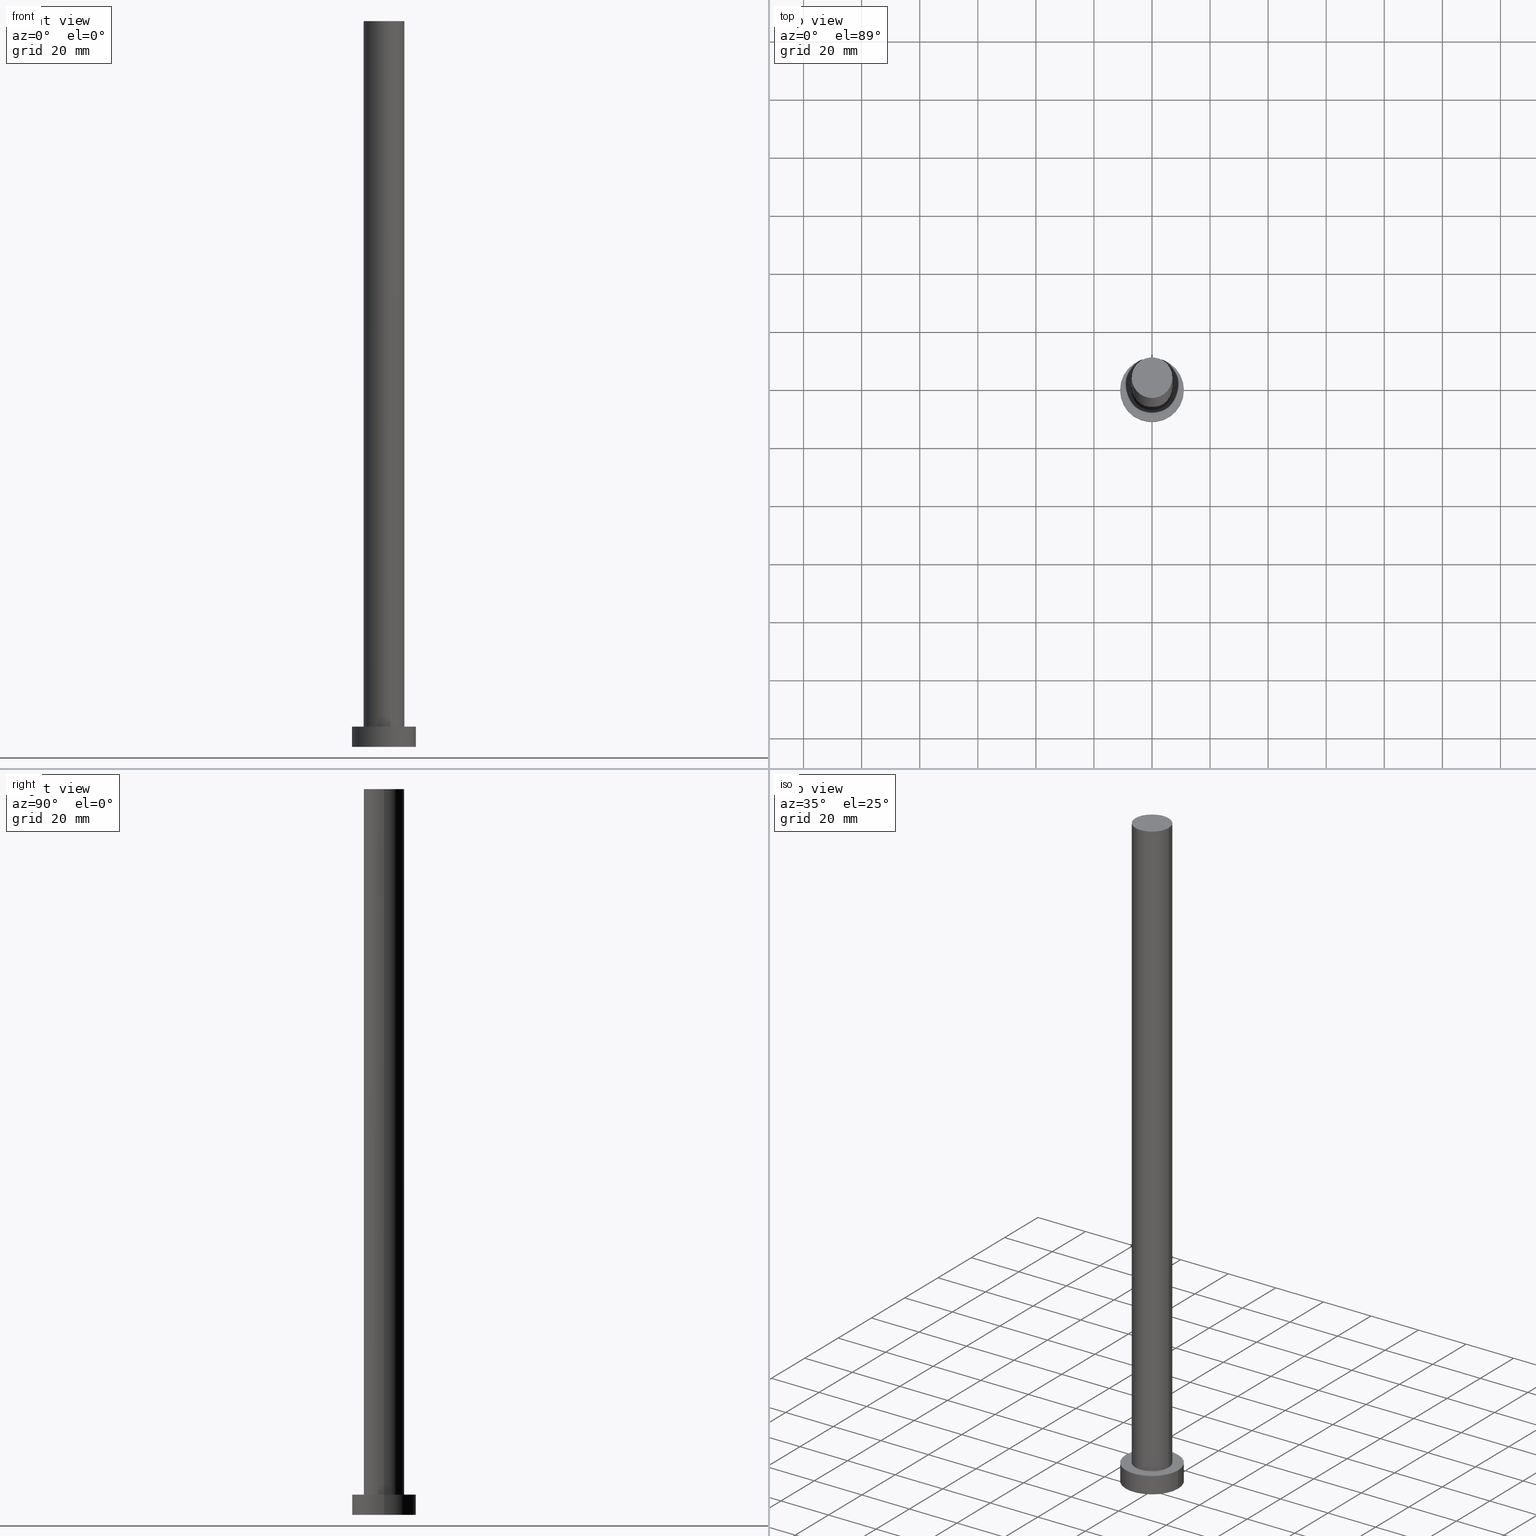
[diagram: canonical four-view strip — front | top / right | iso, engineering-drawing reading convention]
A machine part, canonical four-view strip (front | top / right | iso — engineering-drawing reading convention). The complete STEP part file that produces these views, byte-faithful:
ISO-10303-21;
HEADER;
FILE_DESCRIPTION (( 'STEP AP203' ),
    '1' );
FILE_NAME ('4349.STEP',
    '2023-02-12T10:47:33',
    ( '' ),
    ( '' ),
    'SwSTEP 2.0',
    'SolidWorks 2019',
    '' );
FILE_SCHEMA (( 'CONFIG_CONTROL_DESIGN' ));
ENDSEC;

DATA;
#1 = DIRECTION ( 'NONE',  ( 1.000000000000000000, 0.000000000000000000, 0.000000000000000000 ) ) ;
#2 = APPLICATION_PROTOCOL_DEFINITION ( 'international standard', 'config_control_design', 1994, #60 ) ;
#3 = CIRCLE ( 'NONE', #72, 7.000000000000000000 ) ;
#4 = LINE ( 'NONE', #68, #148 ) ;
#5 = DIRECTION ( 'NONE',  ( 1.000000000000000000, 0.000000000000000000, -0.000000000000000000 ) ) ;
#6 = DIRECTION ( 'NONE',  ( -0.000000000000000000, -0.000000000000000000, -1.000000000000000000 ) ) ;
#7 = PRODUCT_RELATED_PRODUCT_CATEGORY ( 'detail', '', ( #209 ) ) ;
#8 = CARTESIAN_POINT ( 'NONE',  ( -7.000000000000000000, 0.000000000000000000, 7.000000000000000000 ) ) ;
#9 = CARTESIAN_POINT ( 'NONE',  ( 0.000000000000000000, 0.000000000000000000, 7.000000000000000000 ) ) ;
#10 = DIRECTION ( 'NONE',  ( 0.000000000000000000, 0.000000000000000000, 1.000000000000000000 ) ) ;
#11 = ORIENTED_EDGE ( 'NONE', *, *, #135, .T. ) ;
#12 = EDGE_LOOP ( 'NONE', ( #222, #141 ) ) ;
#13 = CARTESIAN_POINT ( 'NONE',  ( -11.00000000000000000, 0.000000000000000000, 0.000000000000000000 ) ) ;
#14 = APPROVAL ( #33, 'NEUR�EN�' ) ;
#15 = DIRECTION ( 'NONE',  ( -0.000000000000000000, -0.000000000000000000, -1.000000000000000000 ) ) ;
#16 = PLANE ( 'NONE',  #56 ) ;
#17 = APPROVAL ( #38, 'NEUR�EN�' ) ;
#18 = AXIS2_PLACEMENT_3D ( 'NONE', #167, #87, #1 ) ;
#19 = ORGANIZATION ( 'NEUR�EN�', 'NEUR�EN�', '' ) ;
#20 = DIRECTION ( 'NONE',  ( -0.000000000000000000, -0.000000000000000000, -1.000000000000000000 ) ) ;
#21 = APPROVAL_DATE_TIME ( #196, #73 ) ;
#22 = APPROVAL_PERSON_ORGANIZATION ( #98, #17, #134 ) ;
#23 = DIRECTION ( 'NONE',  ( -0.000000000000000000, -0.000000000000000000, -1.000000000000000000 ) ) ;
#24 = ORIENTED_EDGE ( 'NONE', *, *, #27, .F. ) ;
#25 = CARTESIAN_POINT ( 'NONE',  ( 0.000000000000000000, 0.000000000000000000, 7.000000000000000000 ) ) ;
#26 = LOCAL_TIME ( 11, 47, 33.00000000000000000, #88 ) ;
#27 = EDGE_CURVE ( 'NONE', #142, #210, #53, .T. ) ;
#28 = CARTESIAN_POINT ( 'NONE',  ( -11.00000000000000000, 0.000000000000000000, 7.000000000000000000 ) ) ;
#29 = VERTEX_POINT ( 'NONE', #13 ) ;
#30 = ORIENTED_EDGE ( 'NONE', *, *, #135, .F. ) ;
#31 = AXIS2_PLACEMENT_3D ( 'NONE', #9, #160, #143 ) ;
#32 = APPROVAL_DATE_TIME ( #227, #14 ) ;
#33 = APPROVAL_STATUS ( 'not_yet_approved' ) ;
#34 = PERSON_AND_ORGANIZATION_ROLE ( 'design_supplier' ) ;
#35 = MECHANICAL_CONTEXT ( 'NONE', #60, 'mechanical' ) ;
#36 = CALENDAR_DATE ( 2023, 12, 2 ) ;
#37 = LINE ( 'NONE', #172, #193 ) ;
#38 = APPROVAL_STATUS ( 'not_yet_approved' ) ;
#39 = LOCAL_TIME ( 11, 47, 33.00000000000000000, #190 ) ;
#40 = DIRECTION ( 'NONE',  ( 0.000000000000000000, 0.000000000000000000, 1.000000000000000000 ) ) ;
#41 = EDGE_CURVE ( 'NONE', #42, #210, #229, .T. ) ;
#42 = VERTEX_POINT ( 'NONE', #163 ) ;
#43 = VERTEX_POINT ( 'NONE', #62 ) ;
#44 = CALENDAR_DATE ( 2023, 12, 2 ) ;
#45 = ORIENTED_EDGE ( 'NONE', *, *, #108, .T. ) ;
#46 = ORIENTED_EDGE ( 'NONE', *, *, #27, .T. ) ;
#47 = DIRECTION ( 'NONE',  ( -0.000000000000000000, -0.000000000000000000, -1.000000000000000000 ) ) ;
#48 =( NAMED_UNIT ( * ) SI_UNIT ( $, .STERADIAN. ) SOLID_ANGLE_UNIT ( ) );
#49 = SHAPE_DEFINITION_REPRESENTATION ( #81, #107 ) ;
#50 = CARTESIAN_POINT ( 'NONE',  ( 0.000000000000000000, 0.000000000000000000, 250.0000000000000000 ) ) ;
#51 = PERSON_AND_ORGANIZATION_ROLE ( 'creator' ) ;
#52 = CC_DESIGN_PERSON_AND_ORGANIZATION_ASSIGNMENT ( #64, #34, ( #127 ) ) ;
#53 = CIRCLE ( 'NONE', #234, 7.000000000000000000 ) ;
#54 = CC_DESIGN_APPROVAL ( #17, ( #127 ) ) ;
#55 = CARTESIAN_POINT ( 'NONE',  ( 0.000000000000000000, 0.000000000000000000, 7.000000000000000000 ) ) ;
#56 = AXIS2_PLACEMENT_3D ( 'NONE', #213, #243, #97 ) ;
#57 = DIRECTION ( 'NONE',  ( 0.000000000000000000, 0.000000000000000000, 1.000000000000000000 ) ) ;
#58 =( GEOMETRIC_REPRESENTATION_CONTEXT ( 3 ) GLOBAL_UNCERTAINTY_ASSIGNED_CONTEXT ( ( #170 ) ) GLOBAL_UNIT_ASSIGNED_CONTEXT ( ( #201, #253, #48 ) ) REPRESENTATION_CONTEXT ( 'NONE', 'WORKASPACE' ) );
#59 = COORDINATED_UNIVERSAL_TIME_OFFSET ( 1, 0, .AHEAD. ) ;
#60 = APPLICATION_CONTEXT ( 'configuration controlled 3d designs of mechanical parts and assemblies' ) ;
#61 = VERTEX_POINT ( 'NONE', #250 ) ;
#62 = CARTESIAN_POINT ( 'NONE',  ( 7.000000000000000000, 8.572527594031473190E-16, 250.0000000000000000 ) ) ;
#63 = CARTESIAN_POINT ( 'NONE',  ( 0.000000000000000000, 0.000000000000000000, 7.000000000000000000 ) ) ;
#64 = PERSON_AND_ORGANIZATION ( #133, #19 ) ;
#65 = DIRECTION ( 'NONE',  ( 0.000000000000000000, 0.000000000000000000, 1.000000000000000000 ) ) ;
#66 = DIRECTION ( 'NONE',  ( 1.000000000000000000, 0.000000000000000000, 0.000000000000000000 ) ) ;
#67 = CC_DESIGN_APPROVAL ( #14, ( #208 ) ) ;
#68 = CARTESIAN_POINT ( 'NONE',  ( 11.00000000000000000, 1.347111479062088405E-15, 7.000000000000000000 ) ) ;
#69 = FACE_OUTER_BOUND ( 'NONE', #185, .T. ) ;
#70 = ORIENTED_EDGE ( 'NONE', *, *, #92, .T. ) ;
#71 = AXIS2_PLACEMENT_3D ( 'NONE', #94, #240, #175 ) ;
#72 = AXIS2_PLACEMENT_3D ( 'NONE', #85, #189, #119 ) ;
#73 = APPROVAL ( #194, 'NEUR�EN�' ) ;
#74 = EDGE_CURVE ( 'NONE', #210, #142, #96, .T. ) ;
#75 = CARTESIAN_POINT ( 'NONE',  ( 0.000000000000000000, 0.000000000000000000, 0.000000000000000000 ) ) ;
#76 = ORIENTED_EDGE ( 'NONE', *, *, #108, .F. ) ;
#77 = FACE_BOUND ( 'NONE', #244, .T. ) ;
#78 = ORIENTED_EDGE ( 'NONE', *, *, #41, .T. ) ;
#79 = ORIENTED_EDGE ( 'NONE', *, *, #153, .F. ) ;
#80 = CARTESIAN_POINT ( 'NONE',  ( -7.000000000000000000, 0.000000000000000000, 250.0000000000000000 ) ) ;
#81 = PRODUCT_DEFINITION_SHAPE ( 'NONE', 'NONE',  #220 ) ;
#82 = EDGE_LOOP ( 'NONE', ( #124, #11, #164, #76 ) ) ;
#83 = FACE_OUTER_BOUND ( 'NONE', #12, .T. ) ;
#84 = AXIS2_PLACEMENT_3D ( 'NONE', #93, #130, #5 ) ;
#85 = CARTESIAN_POINT ( 'NONE',  ( 0.000000000000000000, 0.000000000000000000, 250.0000000000000000 ) ) ;
#86 = DIRECTION ( 'NONE',  ( -0.000000000000000000, -0.000000000000000000, -1.000000000000000000 ) ) ;
#87 = DIRECTION ( 'NONE',  ( 0.000000000000000000, 0.000000000000000000, 1.000000000000000000 ) ) ;
#88 = COORDINATED_UNIVERSAL_TIME_OFFSET ( 1, 0, .AHEAD. ) ;
#89 = PERSON_AND_ORGANIZATION ( #133, #19 ) ;
#90 = CARTESIAN_POINT ( 'NONE',  ( 0.000000000000000000, 0.000000000000000000, 0.000000000000000000 ) ) ;
#91 = APPLICATION_PROTOCOL_DEFINITION ( 'international standard', 'config_control_design', 1994, #177 ) ;
#92 = EDGE_CURVE ( 'NONE', #61, #205, #140, .T. ) ;
#93 = CARTESIAN_POINT ( 'NONE',  ( 0.000000000000000000, 0.000000000000000000, 250.0000000000000000 ) ) ;
#94 = CARTESIAN_POINT ( 'NONE',  ( 0.000000000000000000, 0.000000000000000000, 250.0000000000000000 ) ) ;
#95 = CC_DESIGN_PERSON_AND_ORGANIZATION_ASSIGNMENT ( #230, #144, ( #208 ) ) ;
#96 = CIRCLE ( 'NONE', #31, 7.000000000000000000 ) ;
#97 = DIRECTION ( 'NONE',  ( 1.000000000000000000, 0.000000000000000000, -0.000000000000000000 ) ) ;
#98 = PERSON_AND_ORGANIZATION ( #133, #19 ) ;
#99 = ORIENTED_EDGE ( 'NONE', *, *, #153, .T. ) ;
#100 = EDGE_CURVE ( 'NONE', #182, #29, #102, .T. ) ;
#101 = LOCAL_TIME ( 11, 47, 33.00000000000000000, #105 ) ;
#102 = CIRCLE ( 'NONE', #242, 11.00000000000000000 ) ;
#103 = ORIENTED_EDGE ( 'NONE', *, *, #41, .F. ) ;
#104 = ORIENTED_EDGE ( 'NONE', *, *, #186, .T. ) ;
#105 = COORDINATED_UNIVERSAL_TIME_OFFSET ( 1, 0, .AHEAD. ) ;
#106 = DATE_AND_TIME ( #122, #101 ) ;
#107 = ADVANCED_BREP_SHAPE_REPRESENTATION ( '4349', ( #176, #252 ), #58 ) ;
#108 = EDGE_CURVE ( 'NONE', #205, #29, #109, .T. ) ;
#109 = LINE ( 'NONE', #232, #157 ) ;
#110 = PERSON_AND_ORGANIZATION_ROLE ( 'design_owner' ) ;
#111 = DIRECTION ( 'NONE',  ( 1.000000000000000000, 0.000000000000000000, 0.000000000000000000 ) ) ;
#112 = DIRECTION ( 'NONE',  ( -1.000000000000000000, 0.000000000000000000, 0.000000000000000000 ) ) ;
#113 = PLANE ( 'NONE',  #84 ) ;
#114 = CIRCLE ( 'NONE', #18, 7.000000000000000000 ) ;
#115 = AXIS2_PLACEMENT_3D ( 'NONE', #50, #86, #165 ) ;
#116 = EDGE_CURVE ( 'NONE', #42, #43, #114, .T. ) ;
#117 = AXIS2_PLACEMENT_3D ( 'NONE', #75, #57, #221 ) ;
#118 = COORDINATED_UNIVERSAL_TIME_OFFSET ( 1, 0, .AHEAD. ) ;
#119 = DIRECTION ( 'NONE',  ( 1.000000000000000000, 0.000000000000000000, 0.000000000000000000 ) ) ;
#120 = ORIENTED_EDGE ( 'NONE', *, *, #217, .T. ) ;
#121 = PERSON_AND_ORGANIZATION_ROLE ( 'creator' ) ;
#122 = CALENDAR_DATE ( 2023, 12, 2 ) ;
#123 = AXIS2_PLACEMENT_3D ( 'NONE', #219, #40, #166 ) ;
#124 = ORIENTED_EDGE ( 'NONE', *, *, #92, .F. ) ;
#125 = DIRECTION ( 'NONE',  ( 1.000000000000000000, 0.000000000000000000, 0.000000000000000000 ) ) ;
#126 = DIRECTION ( 'NONE',  ( 0.000000000000000000, 0.000000000000000000, 1.000000000000000000 ) ) ;
#127 = PRODUCT_DEFINITION_FORMATION_WITH_SPECIFIED_SOURCE ( 'LIBOVOLN�', '', #209, .NOT_KNOWN. ) ;
#128 = ADVANCED_FACE ( 'NONE', ( #191 ), #200, .T. ) ;
#129 = PERSON_AND_ORGANIZATION ( #133, #19 ) ;
#130 = DIRECTION ( 'NONE',  ( 0.000000000000000000, 0.000000000000000000, 1.000000000000000000 ) ) ;
#131 = DESIGN_CONTEXT ( 'detailed design', #177, 'design' ) ;
#132 = LOCAL_TIME ( 11, 47, 33.00000000000000000, #118 ) ;
#133 = PERSON ( 'NEUR�EN�', 'NEUR�EN�', 'NEUR�EN�', ('NEUR�EN�'), ('NEUR�EN�'), ('NEUR�EN�') ) ;
#134 = APPROVAL_ROLE ( '' ) ;
#135 = EDGE_CURVE ( 'NONE', #61, #182, #4, .T. ) ;
#136 = CARTESIAN_POINT ( 'NONE',  ( 11.00000000000000000, 1.347111479062088405E-15, 0.000000000000000000 ) ) ;
#137 = CALENDAR_DATE ( 2023, 12, 2 ) ;
#138 = DATE_AND_TIME ( #137, #26 ) ;
#139 = EDGE_LOOP ( 'NONE', ( #79, #226, #78, #249 ) ) ;
#140 = CIRCLE ( 'NONE', #173, 11.00000000000000000 ) ;
#141 = ORIENTED_EDGE ( 'NONE', *, *, #100, .F. ) ;
#142 = VERTEX_POINT ( 'NONE', #156 ) ;
#143 = DIRECTION ( 'NONE',  ( 1.000000000000000000, 0.000000000000000000, 0.000000000000000000 ) ) ;
#144 = PERSON_AND_ORGANIZATION_ROLE ( 'classification_officer' ) ;
#145 = DIRECTION ( 'NONE',  ( 1.000000000000000000, 0.000000000000000000, 0.000000000000000000 ) ) ;
#146 = SECURITY_CLASSIFICATION_LEVEL ( 'unclassified' ) ;
#147 = FACE_OUTER_BOUND ( 'NONE', #139, .T. ) ;
#148 = VECTOR ( 'NONE', #6, 1000.000000000000000 ) ;
#149 = ADVANCED_FACE ( 'NONE', ( #152 ), #239, .T. ) ;
#150 = CC_DESIGN_DATE_AND_TIME_ASSIGNMENT ( #138, #203, ( #220 ) ) ;
#151 = CLOSED_SHELL ( 'NONE', ( #149, #155, #128, #254, #255, #215, #169 ) ) ;
#152 = FACE_OUTER_BOUND ( 'NONE', #206, .T. ) ;
#153 = EDGE_CURVE ( 'NONE', #43, #142, #37, .T. ) ;
#154 = DATE_AND_TIME ( #199, #132 ) ;
#155 = ADVANCED_FACE ( 'NONE', ( #238 ), #159, .T. ) ;
#156 = CARTESIAN_POINT ( 'NONE',  ( 7.000000000000000000, 8.572527594031473190E-16, 7.000000000000000000 ) ) ;
#157 = VECTOR ( 'NONE', #15, 1000.000000000000000 ) ;
#158 = LOCAL_TIME ( 11, 47, 33.00000000000000000, #59 ) ;
#159 = CYLINDRICAL_SURFACE ( 'NONE', #237, 11.00000000000000000 ) ;
#160 = DIRECTION ( 'NONE',  ( 0.000000000000000000, 0.000000000000000000, 1.000000000000000000 ) ) ;
#161 = ORIENTED_EDGE ( 'NONE', *, *, #187, .F. ) ;
#162 = PERSON_AND_ORGANIZATION ( #133, #19 ) ;
#163 = CARTESIAN_POINT ( 'NONE',  ( -7.000000000000000000, 0.000000000000000000, 250.0000000000000000 ) ) ;
#164 = ORIENTED_EDGE ( 'NONE', *, *, #100, .T. ) ;
#165 = DIRECTION ( 'NONE',  ( -1.000000000000000000, 0.000000000000000000, 0.000000000000000000 ) ) ;
#166 = DIRECTION ( 'NONE',  ( 1.000000000000000000, 0.000000000000000000, 0.000000000000000000 ) ) ;
#167 = CARTESIAN_POINT ( 'NONE',  ( 0.000000000000000000, 0.000000000000000000, 250.0000000000000000 ) ) ;
#168 = PERSON_AND_ORGANIZATION ( #133, #19 ) ;
#169 = ADVANCED_FACE ( 'NONE', ( #69 ), #113, .T. ) ;
#170 = UNCERTAINTY_MEASURE_WITH_UNIT (LENGTH_MEASURE( 1.000000000000000082E-05 ), #201, 'distance_accuracy_value', 'NONE');
#171 = CC_DESIGN_PERSON_AND_ORGANIZATION_ASSIGNMENT ( #162, #121, ( #127 ) ) ;
#172 = CARTESIAN_POINT ( 'NONE',  ( 7.000000000000000000, 8.572527594031473190E-16, 250.0000000000000000 ) ) ;
#173 = AXIS2_PLACEMENT_3D ( 'NONE', #188, #231, #111 ) ;
#174 = AXIS2_PLACEMENT_3D ( 'NONE', #180, #10, #125 ) ;
#175 = DIRECTION ( 'NONE',  ( -1.000000000000000000, 0.000000000000000000, 0.000000000000000000 ) ) ;
#176 = MANIFOLD_SOLID_BREP ( 'P�idat vysunut�m3', #151 ) ;
#177 = APPLICATION_CONTEXT ( 'configuration controlled 3d designs of mechanical parts and assemblies' ) ;
#178 = APPROVAL_PERSON_ORGANIZATION ( #89, #73, #233 ) ;
#179 = EDGE_LOOP ( 'NONE', ( #30, #246, #45, #104 ) ) ;
#180 = CARTESIAN_POINT ( 'NONE',  ( 0.000000000000000000, 0.000000000000000000, 7.000000000000000000 ) ) ;
#181 = PLANE ( 'NONE',  #117 ) ;
#182 = VERTEX_POINT ( 'NONE', #136 ) ;
#183 = AXIS2_PLACEMENT_3D ( 'NONE', #25, #20, #112 ) ;
#184 = DIRECTION ( 'NONE',  ( 0.000000000000000000, 0.000000000000000000, 1.000000000000000000 ) ) ;
#185 = EDGE_LOOP ( 'NONE', ( #225, #204 ) ) ;
#186 = EDGE_CURVE ( 'NONE', #29, #182, #247, .T. ) ;
#187 = EDGE_CURVE ( 'NONE', #43, #42, #3, .T. ) ;
#188 = CARTESIAN_POINT ( 'NONE',  ( 0.000000000000000000, 0.000000000000000000, 7.000000000000000000 ) ) ;
#189 = DIRECTION ( 'NONE',  ( 0.000000000000000000, 0.000000000000000000, 1.000000000000000000 ) ) ;
#190 = COORDINATED_UNIVERSAL_TIME_OFFSET ( 1, 0, .AHEAD. ) ;
#191 = FACE_OUTER_BOUND ( 'NONE', #179, .T. ) ;
#192 = DIRECTION ( 'NONE',  ( 1.000000000000000000, 0.000000000000000000, 0.000000000000000000 ) ) ;
#193 = VECTOR ( 'NONE', #23, 1000.000000000000000 ) ;
#194 = APPROVAL_STATUS ( 'not_yet_approved' ) ;
#195 = CARTESIAN_POINT ( 'NONE',  ( 0.000000000000000000, 0.000000000000000000, 0.000000000000000000 ) ) ;
#196 = DATE_AND_TIME ( #36, #39 ) ;
#197 = CC_DESIGN_DATE_AND_TIME_ASSIGNMENT ( #106, #207, ( #208 ) ) ;
#198 = DIRECTION ( 'NONE',  ( -0.000000000000000000, -0.000000000000000000, -1.000000000000000000 ) ) ;
#199 = CALENDAR_DATE ( 2023, 12, 2 ) ;
#200 = CYLINDRICAL_SURFACE ( 'NONE', #183, 11.00000000000000000 ) ;
#201 =( LENGTH_UNIT ( ) NAMED_UNIT ( * ) SI_UNIT ( .MILLI., .METRE. ) );
#202 = CC_DESIGN_PERSON_AND_ORGANIZATION_ASSIGNMENT ( #129, #110, ( #209 ) ) ;
#203 = DATE_TIME_ROLE ( 'creation_date' ) ;
#204 = ORIENTED_EDGE ( 'NONE', *, *, #187, .T. ) ;
#205 = VERTEX_POINT ( 'NONE', #28 ) ;
#206 = EDGE_LOOP ( 'NONE', ( #161, #99, #46, #103 ) ) ;
#207 = DATE_TIME_ROLE ( 'classification_date' ) ;
#208 = SECURITY_CLASSIFICATION ( '', '', #146 ) ;
#209 = PRODUCT ( '4349', '4349', '', ( #35 ) ) ;
#210 = VERTEX_POINT ( 'NONE', #8 ) ;
#211 = PERSON_AND_ORGANIZATION ( #133, #19 ) ;
#212 = CYLINDRICAL_SURFACE ( 'NONE', #115, 7.000000000000000000 ) ;
#213 = CARTESIAN_POINT ( 'NONE',  ( 0.000000000000000000, 0.000000000000000000, 7.000000000000000000 ) ) ;
#214 = APPROVAL_PERSON_ORGANIZATION ( #211, #14, #248 ) ;
#215 = ADVANCED_FACE ( 'NONE', ( #147 ), #212, .T. ) ;
#216 = VECTOR ( 'NONE', #47, 1000.000000000000000 ) ;
#217 = EDGE_CURVE ( 'NONE', #205, #61, #235, .T. ) ;
#218 = DIRECTION ( 'NONE',  ( -1.000000000000000000, 0.000000000000000000, 0.000000000000000000 ) ) ;
#219 = CARTESIAN_POINT ( 'NONE',  ( 0.000000000000000000, 0.000000000000000000, 0.000000000000000000 ) ) ;
#220 = PRODUCT_DEFINITION ( 'NEZN�M�', '', #127, #131 ) ;
#221 = DIRECTION ( 'NONE',  ( 1.000000000000000000, 0.000000000000000000, -0.000000000000000000 ) ) ;
#222 = ORIENTED_EDGE ( 'NONE', *, *, #186, .F. ) ;
#223 = EDGE_LOOP ( 'NONE', ( #120, #70 ) ) ;
#224 = APPROVAL_DATE_TIME ( #154, #17 ) ;
#225 = ORIENTED_EDGE ( 'NONE', *, *, #116, .T. ) ;
#226 = ORIENTED_EDGE ( 'NONE', *, *, #116, .F. ) ;
#227 = DATE_AND_TIME ( #44, #158 ) ;
#228 = CC_DESIGN_APPROVAL ( #73, ( #220 ) ) ;
#229 = LINE ( 'NONE', #80, #216 ) ;
#230 = PERSON_AND_ORGANIZATION ( #133, #19 ) ;
#231 = DIRECTION ( 'NONE',  ( 0.000000000000000000, 0.000000000000000000, 1.000000000000000000 ) ) ;
#232 = CARTESIAN_POINT ( 'NONE',  ( -11.00000000000000000, 0.000000000000000000, 7.000000000000000000 ) ) ;
#233 = APPROVAL_ROLE ( '' ) ;
#234 = AXIS2_PLACEMENT_3D ( 'NONE', #63, #184, #145 ) ;
#235 = CIRCLE ( 'NONE', #174, 11.00000000000000000 ) ;
#236 = CC_DESIGN_PERSON_AND_ORGANIZATION_ASSIGNMENT ( #168, #51, ( #220 ) ) ;
#237 = AXIS2_PLACEMENT_3D ( 'NONE', #55, #198, #218 ) ;
#238 = FACE_OUTER_BOUND ( 'NONE', #82, .T. ) ;
#239 = CYLINDRICAL_SURFACE ( 'NONE', #71, 7.000000000000000000 ) ;
#240 = DIRECTION ( 'NONE',  ( -0.000000000000000000, -0.000000000000000000, -1.000000000000000000 ) ) ;
#241 = CC_DESIGN_SECURITY_CLASSIFICATION ( #208, ( #127 ) ) ;
#242 = AXIS2_PLACEMENT_3D ( 'NONE', #90, #126, #66 ) ;
#243 = DIRECTION ( 'NONE',  ( 0.000000000000000000, 0.000000000000000000, 1.000000000000000000 ) ) ;
#244 = EDGE_LOOP ( 'NONE', ( #251, #24 ) ) ;
#245 = FACE_OUTER_BOUND ( 'NONE', #223, .T. ) ;
#246 = ORIENTED_EDGE ( 'NONE', *, *, #217, .F. ) ;
#247 = CIRCLE ( 'NONE', #123, 11.00000000000000000 ) ;
#248 = APPROVAL_ROLE ( '' ) ;
#249 = ORIENTED_EDGE ( 'NONE', *, *, #74, .T. ) ;
#250 = CARTESIAN_POINT ( 'NONE',  ( 11.00000000000000000, 1.347111479062088405E-15, 7.000000000000000000 ) ) ;
#251 = ORIENTED_EDGE ( 'NONE', *, *, #74, .F. ) ;
#252 = AXIS2_PLACEMENT_3D ( 'NONE', #195, #65, #192 ) ;
#253 =( NAMED_UNIT ( * ) PLANE_ANGLE_UNIT ( ) SI_UNIT ( $, .RADIAN. ) );
#254 = ADVANCED_FACE ( 'NONE', ( #77, #245 ), #16, .T. ) ;
#255 = ADVANCED_FACE ( 'NONE', ( #83 ), #181, .F. ) ;
ENDSEC;
END-ISO-10303-21;
